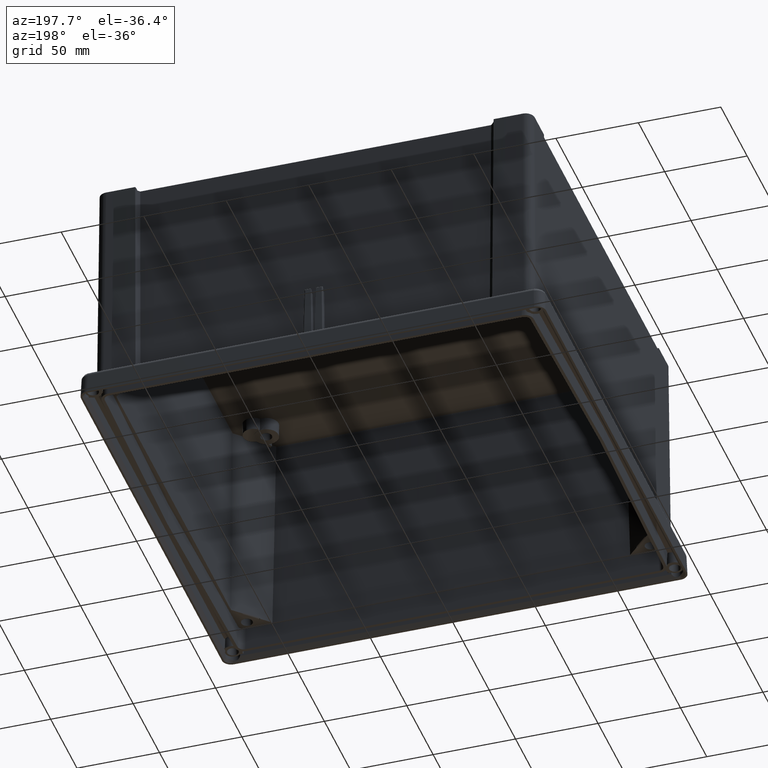
[diagram: clean part render]
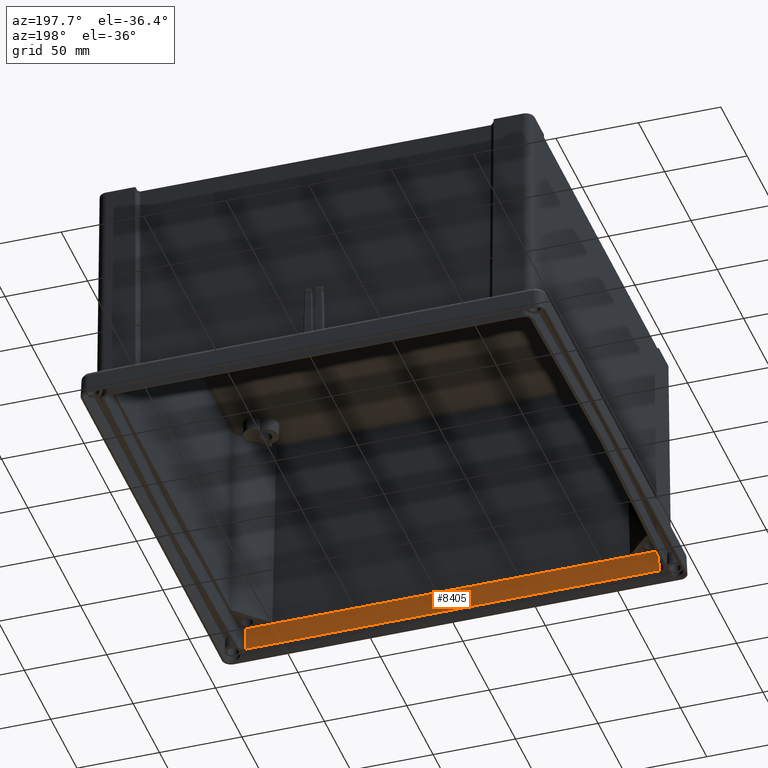
[diagram: same view with one face highlighted and labeled with its STEP entity id]
A machine part, auxiliary view. The second image highlights one B-rep face of the part: STEP entity #8405.
In plain terms, the highlighted planar face has unit normal (0, -0.9994, 0.0349).
Its self-contained STEP definition (entity closure, byte-faithful):
#8164 = VERTEX_POINT ( 'NONE', #13916 ) ;
#8166 = EDGE_CURVE ( 'NONE', #8164, #8167, #13963, .T. ) ;
#8167 = VERTEX_POINT ( 'NONE', #13980 ) ;
#8177 = VERTEX_POINT ( 'NONE', #14036 ) ;
#8180 = EDGE_CURVE ( 'NONE', #8177, #8181, #14043, .T. ) ;
#8181 = VERTEX_POINT ( 'NONE', #14048 ) ;
#8254 = EDGE_CURVE ( 'NONE', #8167, #8177, #14247, .T. ) ;
#8400 = EDGE_CURVE ( 'NONE', #8181, #8401, #14942, .T. ) ;
#8401 = VERTEX_POINT ( 'NONE', #14938 ) ;
#8405 = ADVANCED_FACE ( 'NONE', ( #14937 ), #14936, .F. ) ;
#8406 = EDGE_LOOP ( 'NONE', ( #8407, #8464, #8465, #8466, #8469, #8471 ) ) ;
#8407 = ORIENTED_EDGE ( 'NONE', *, *, #8180, .F. ) ;
#8464 = ORIENTED_EDGE ( 'NONE', *, *, #8254, .F. ) ;
#8465 = ORIENTED_EDGE ( 'NONE', *, *, #8166, .F. ) ;
#8466 = ORIENTED_EDGE ( 'NONE', *, *, #8467, .T. ) ;
#8467 = EDGE_CURVE ( 'NONE', #8164, #8468, #15030, .T. ) ;
#8468 = VERTEX_POINT ( 'NONE', #15025 ) ;
#8469 = ORIENTED_EDGE ( 'NONE', *, *, #8470, .F. ) ;
#8470 = EDGE_CURVE ( 'NONE', #8401, #8468, #15026, .T. ) ;
#8471 = ORIENTED_EDGE ( 'NONE', *, *, #8400, .F. ) ;
#13916 = CARTESIAN_POINT ( 'NONE',  ( 125.1974604045431900, -129.1999999999999900, 12.79000000000016600 ) ) ;
#13963 = LINE ( 'NONE', #13983, #13982 ) ;
#13980 = CARTESIAN_POINT ( 'NONE',  ( 125.1974604045431900, -129.0952376915247200, 15.78999999999999900 ) ) ;
#13981 = DIRECTION ( 'NONE',  ( -0.0000000000000000000, 0.03489949670250096200, 0.9993908270190956500 ) ) ;
#13982 = VECTOR ( 'NONE', #13981, 1000.000000000000100 ) ;
#13983 = CARTESIAN_POINT ( 'NONE',  ( 125.1974604045431900, -129.1999999999999900, 12.78999999999999900 ) ) ;
#14036 = CARTESIAN_POINT ( 'NONE',  ( -125.1974604045431900, -129.0952376915247200, 15.78999999999999900 ) ) ;
#14040 = DIRECTION ( 'NONE',  ( 0.0000000000000000000, -0.03489949670250096200, -0.9993908270190956500 ) ) ;
#14041 = VECTOR ( 'NONE', #14040, 1000.000000000000100 ) ;
#14042 = CARTESIAN_POINT ( 'NONE',  ( -125.1974604045431900, -129.1999999999999900, 12.78999999999999900 ) ) ;
#14043 = LINE ( 'NONE', #14042, #14041 ) ;
#14048 = CARTESIAN_POINT ( 'NONE',  ( -125.1974604045431900, -129.1999999999999900, 12.79000000000002400 ) ) ;
#14244 = DIRECTION ( 'NONE',  ( -1.000000000000000000, -0.0000000000000000000, -0.0000000000000000000 ) ) ;
#14245 = VECTOR ( 'NONE', #14244, 1000.000000000000000 ) ;
#14246 = CARTESIAN_POINT ( 'NONE',  ( -133.7072992288786700, -129.0952376915247200, 15.78999999999999600 ) ) ;
#14247 = LINE ( 'NONE', #14246, #14245 ) ;
#14926 = DIRECTION ( 'NONE',  ( 0.0000000000000000000, -0.03489949670250096200, -0.9993908270190956500 ) ) ;
#14927 = DIRECTION ( 'NONE',  ( 0.0000000000000000000, -0.9993908270190957600, 0.03489949670250096900 ) ) ;
#14928 = CARTESIAN_POINT ( 'NONE',  ( -133.7072992288786700, -129.1999999999999900, 12.78999999999999900 ) ) ;
#14930 = AXIS2_PLACEMENT_3D ( 'NONE', #14928, #14927, #14926 ) ;
#14936 = PLANE ( 'NONE',  #14930 ) ;
#14937 = FACE_OUTER_BOUND ( 'NONE', #8406, .T. ) ;
#14938 = CARTESIAN_POINT ( 'NONE',  ( -125.5780308842174500, -129.5872713336634700, 1.700000000000000200 ) ) ;
#14939 = DIRECTION ( 'NONE',  ( -0.03427548855823888500, -0.03487899055459502100, -0.9988036077738138300 ) ) ;
#14940 = VECTOR ( 'NONE', #14939, 1000.000000000000100 ) ;
#14941 = CARTESIAN_POINT ( 'NONE',  ( -125.1974604045431900, -129.1999999999999900, 12.79000000000005100 ) ) ;
#14942 = LINE ( 'NONE', #14941, #14940 ) ;
#15025 = CARTESIAN_POINT ( 'NONE',  ( 125.5780308842174500, -129.5872713336634700, 1.700000000000000200 ) ) ;
#15026 = LINE ( 'NONE', #15066, #15065 ) ;
#15027 = DIRECTION ( 'NONE',  ( 0.03427548855823796300, -0.03487899055459560400, -0.9988036077738138300 ) ) ;
#15028 = VECTOR ( 'NONE', #15027, 1000.000000000000100 ) ;
#15029 = CARTESIAN_POINT ( 'NONE',  ( 125.5732617007819000, -129.5824181773410000, 1.838976213671435800 ) ) ;
#15030 = LINE ( 'NONE', #15029, #15028 ) ;
#15064 = DIRECTION ( 'NONE',  ( 1.000000000000000000, -0.0000000000000000000, 0.0000000000000000000 ) ) ;
#15065 = VECTOR ( 'NONE', #15064, 1000.000000000000000 ) ;
#15066 = CARTESIAN_POINT ( 'NONE',  ( 0.0000000000000000000, -129.5872713336634700, 1.700000000000000000 ) ) ;